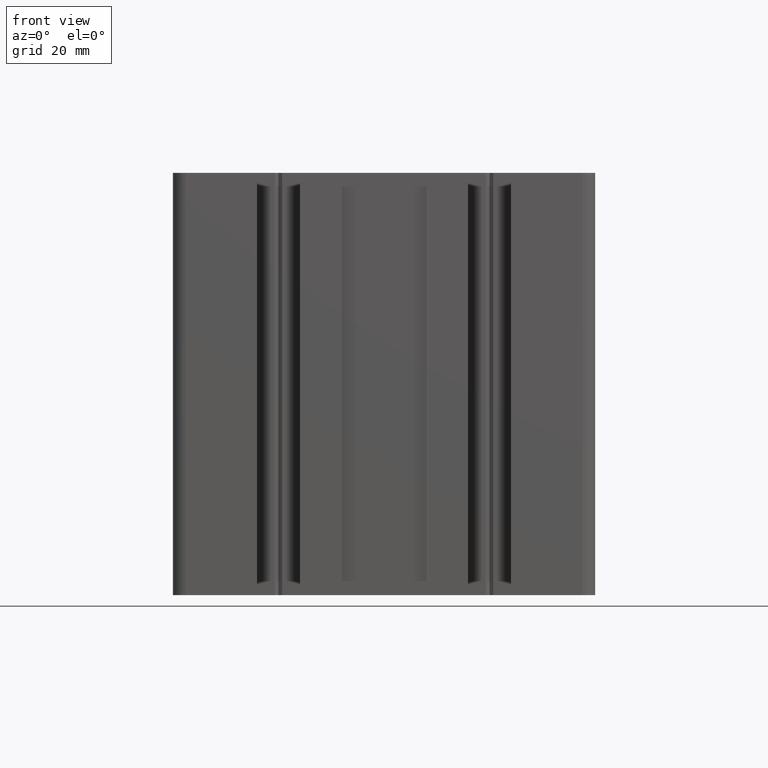
[diagram: clean part render]
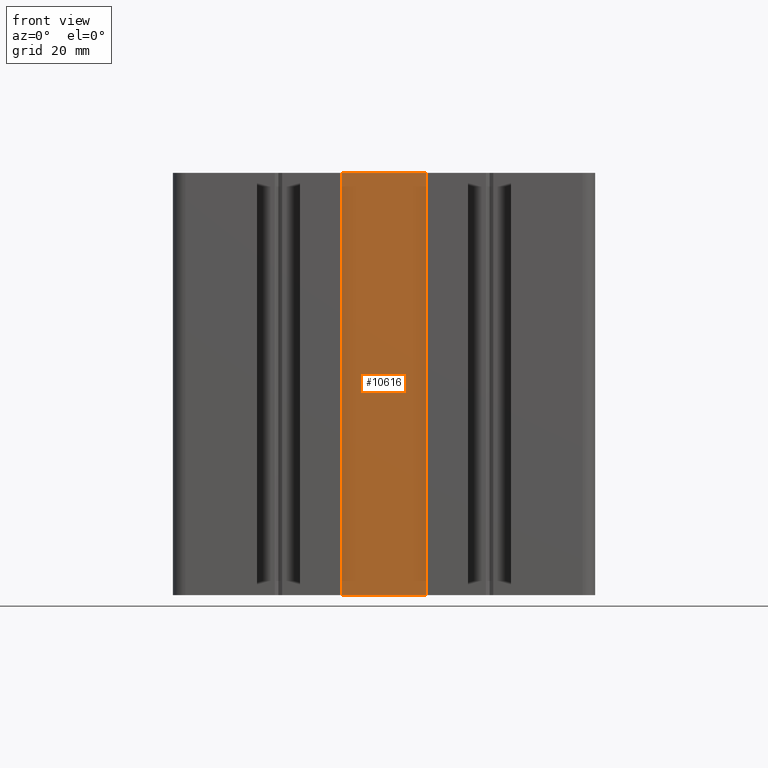
[diagram: same view with one face highlighted and labeled with its STEP entity id]
A machine part, front view. The second image highlights one B-rep face of the part: STEP entity #10616.
In plain terms, the highlighted planar face has unit normal (0, 1, -0).
Its self-contained STEP definition (entity closure, byte-faithful):
#9458 = VERTEX_POINT ( 'NONE', #16288 ) ;
#9512 = VERTEX_POINT ( 'NONE', #16376 ) ;
#9515 = EDGE_CURVE ( 'NONE', #9512, #9458, #16415, .T. ) ;
#10548 = ORIENTED_EDGE ( 'NONE', *, *, #9515, .T. ) ;
#10550 = ORIENTED_EDGE ( 'NONE', *, *, #10562, .T. ) ;
#10551 = ORIENTED_EDGE ( 'NONE', *, *, #11287, .F. ) ;
#10557 = EDGE_LOOP ( 'NONE', ( #10548, #10615, #10551, #10550 ) ) ;
#10562 = EDGE_CURVE ( 'NONE', #11326, #9512, #18130, .T. ) ;
#10614 = EDGE_CURVE ( 'NONE', #11284, #9458, #18170, .T. ) ;
#10615 = ORIENTED_EDGE ( 'NONE', *, *, #10614, .F. ) ;
#10616 = ADVANCED_FACE ( 'NONE', ( #18182 ), #18162, .F. ) ;
#11284 = VERTEX_POINT ( 'NONE', #19193 ) ;
#11287 = EDGE_CURVE ( 'NONE', #11326, #11284, #19176, .T. ) ;
#11326 = VERTEX_POINT ( 'NONE', #19235 ) ;
#16288 = CARTESIAN_POINT ( 'NONE',  ( 10.00000000000000000, -49.00000000000022700, 0.0000000000000000000 ) ) ;
#16376 = CARTESIAN_POINT ( 'NONE',  ( -10.00000000000000000, -49.00000000000022700, 0.0000000000000000000 ) ) ;
#16412 = DIRECTION ( 'NONE',  ( 1.000000000000000000, -0.0000000000000000000, -0.0000000000000000000 ) ) ;
#16413 = VECTOR ( 'NONE', #16412, 1000.000000000000000 ) ;
#16414 = CARTESIAN_POINT ( 'NONE',  ( 10.00000000000000000, -49.00000000000022700, 0.0000000000000000000 ) ) ;
#16415 = LINE ( 'NONE', #16414, #16413 ) ;
#18127 = DIRECTION ( 'NONE',  ( -0.0000000000000000000, -0.0000000000000000000, -1.000000000000000000 ) ) ;
#18128 = VECTOR ( 'NONE', #18127, 1000.000000000000000 ) ;
#18129 = CARTESIAN_POINT ( 'NONE',  ( -10.00000000000000000, -49.00000000000022700, 100.0000000000000000 ) ) ;
#18130 = LINE ( 'NONE', #18129, #18128 ) ;
#18141 = DIRECTION ( 'NONE',  ( 0.0000000000000000000, 1.000000000000000000, -0.0000000000000000000 ) ) ;
#18146 = CARTESIAN_POINT ( 'NONE',  ( 10.00000000000000000, -49.00000000000022700, 100.0000000000000000 ) ) ;
#18162 = PLANE ( 'NONE',  #18166 ) ;
#18166 = AXIS2_PLACEMENT_3D ( 'NONE', #18146, #18141, #18176 ) ;
#18167 = DIRECTION ( 'NONE',  ( -0.0000000000000000000, -0.0000000000000000000, -1.000000000000000000 ) ) ;
#18168 = VECTOR ( 'NONE', #18167, 1000.000000000000000 ) ;
#18169 = CARTESIAN_POINT ( 'NONE',  ( 10.00000000000000000, -49.00000000000022700, 100.0000000000000000 ) ) ;
#18170 = LINE ( 'NONE', #18169, #18168 ) ;
#18176 = DIRECTION ( 'NONE',  ( 0.0000000000000000000, 0.0000000000000000000, 1.000000000000000000 ) ) ;
#18182 = FACE_OUTER_BOUND ( 'NONE', #10557, .T. ) ;
#19173 = DIRECTION ( 'NONE',  ( 1.000000000000000000, -0.0000000000000000000, -0.0000000000000000000 ) ) ;
#19174 = VECTOR ( 'NONE', #19173, 1000.000000000000000 ) ;
#19175 = CARTESIAN_POINT ( 'NONE',  ( 10.00000000000000000, -49.00000000000022700, 100.0000000000000000 ) ) ;
#19176 = LINE ( 'NONE', #19175, #19174 ) ;
#19193 = CARTESIAN_POINT ( 'NONE',  ( 10.00000000000000000, -49.00000000000022700, 100.0000000000000000 ) ) ;
#19235 = CARTESIAN_POINT ( 'NONE',  ( -10.00000000000000000, -49.00000000000022700, 100.0000000000000000 ) ) ;